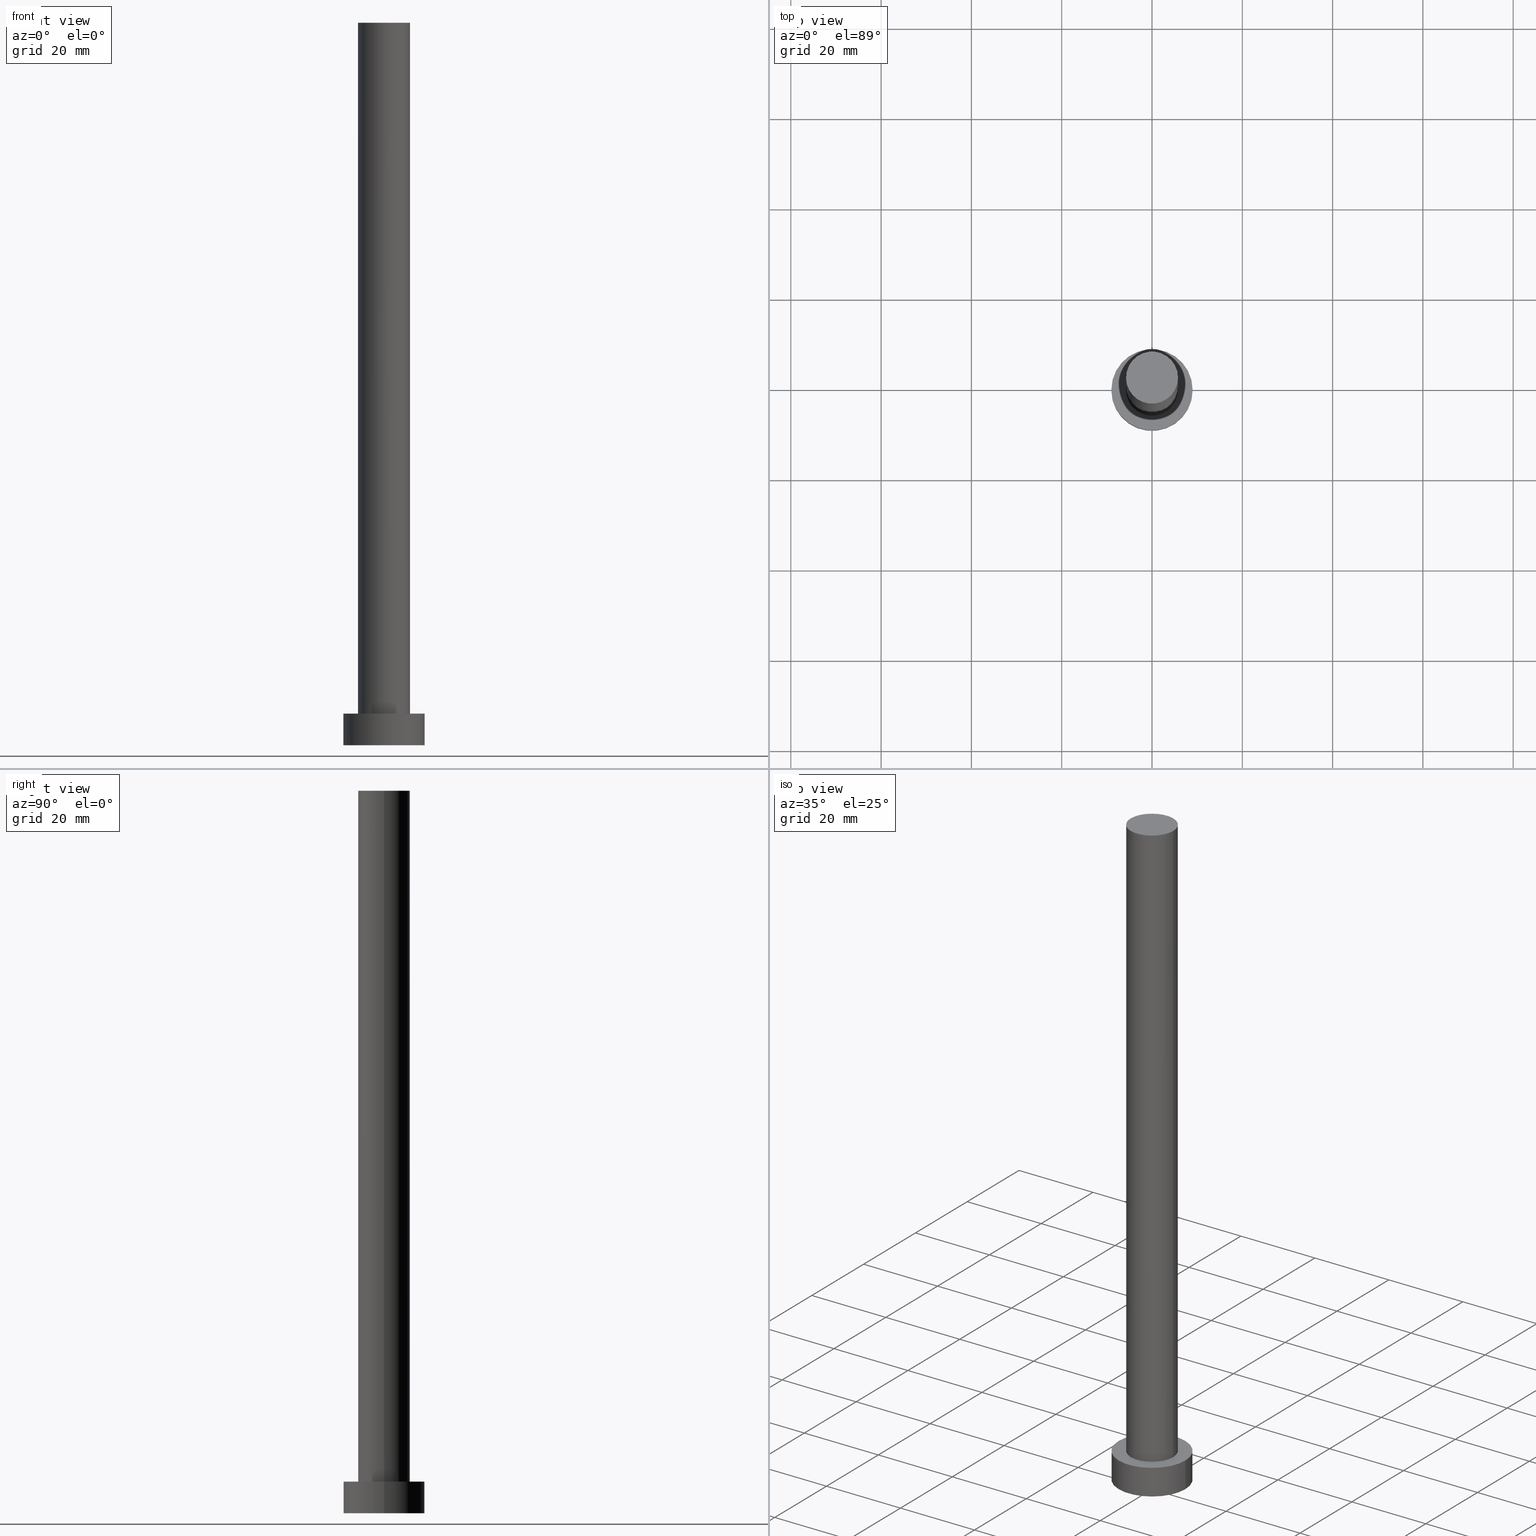
[diagram: canonical four-view strip — front | top / right | iso, engineering-drawing reading convention]
A machine part, canonical four-view strip (front | top / right | iso — engineering-drawing reading convention). The complete STEP part file that produces these views, byte-faithful:
ISO-10303-21;
HEADER;
FILE_DESCRIPTION (( 'STEP AP203' ),
    '1' );
FILE_NAME ('a5d1.STEP',
    '2023-02-13T12:27:35',
    ( '' ),
    ( '' ),
    'SwSTEP 2.0',
    'SolidWorks 2019',
    '' );
FILE_SCHEMA (( 'CONFIG_CONTROL_DESIGN' ));
ENDSEC;

DATA;
#1 = AXIS2_PLACEMENT_3D ( 'NONE', #76, #230, #186 ) ;
#2 = DIRECTION ( 'NONE',  ( 1.000000000000000000, 0.000000000000000000, 0.000000000000000000 ) ) ;
#3 = DIRECTION ( 'NONE',  ( 1.000000000000000000, 0.000000000000000000, 0.000000000000000000 ) ) ;
#4 = EDGE_LOOP ( 'NONE', ( #122, #171 ) ) ;
#5 = CC_DESIGN_DATE_AND_TIME_ASSIGNMENT ( #56, #144, ( #60 ) ) ;
#6 = EDGE_CURVE ( 'NONE', #67, #101, #168, .T. ) ;
#7 = DIRECTION ( 'NONE',  ( -0.000000000000000000, -0.000000000000000000, -1.000000000000000000 ) ) ;
#8 = ORIENTED_EDGE ( 'NONE', *, *, #187, .T. ) ;
#9 = DIRECTION ( 'NONE',  ( -1.000000000000000000, 0.000000000000000000, 0.000000000000000000 ) ) ;
#10 = EDGE_CURVE ( 'NONE', #107, #174, #178, .T. ) ;
#11 = ORIENTED_EDGE ( 'NONE', *, *, #6, .T. ) ;
#12 = ORIENTED_EDGE ( 'NONE', *, *, #189, .F. ) ;
#13 =( NAMED_UNIT ( * ) PLANE_ANGLE_UNIT ( ) SI_UNIT ( $, .RADIAN. ) );
#14 = AXIS2_PLACEMENT_3D ( 'NONE', #198, #54, #87 ) ;
#15 = PERSON_AND_ORGANIZATION ( #205, #224 ) ;
#16 = AXIS2_PLACEMENT_3D ( 'NONE', #113, #52, #151 ) ;
#17 = COORDINATED_UNIVERSAL_TIME_OFFSET ( 1, 0, .AHEAD. ) ;
#18 = DATE_AND_TIME ( #176, #118 ) ;
#19 = CYLINDRICAL_SURFACE ( 'NONE', #188, 9.000000000000000000 ) ;
#20 = APPROVAL_ROLE ( '' ) ;
#21 = DIRECTION ( 'NONE',  ( 0.000000000000000000, 0.000000000000000000, 1.000000000000000000 ) ) ;
#22 = DIRECTION ( 'NONE',  ( -1.000000000000000000, 0.000000000000000000, 0.000000000000000000 ) ) ;
#23 = PRODUCT_DEFINITION_FORMATION_WITH_SPECIFIED_SOURCE ( 'LIBOVOLN�', '', #142, .NOT_KNOWN. ) ;
#24 = APPLICATION_CONTEXT ( 'configuration controlled 3d designs of mechanical parts and assemblies' ) ;
#25 = FACE_OUTER_BOUND ( 'NONE', #242, .T. ) ;
#26 = EDGE_CURVE ( 'NONE', #112, #173, #100, .T. ) ;
#27 = APPROVAL_DATE_TIME ( #163, #219 ) ;
#28 = PERSON_AND_ORGANIZATION_ROLE ( 'creator' ) ;
#29 = CIRCLE ( 'NONE', #241, 5.750000000000000000 ) ;
#30 = APPLICATION_PROTOCOL_DEFINITION ( 'international standard', 'config_control_design', 1994, #24 ) ;
#31 = CARTESIAN_POINT ( 'NONE',  ( 5.750000000000000000, 7.041719095097280880E-16, 7.000000000000000000 ) ) ;
#32 = APPROVAL_STATUS ( 'not_yet_approved' ) ;
#33 = FACE_OUTER_BOUND ( 'NONE', #246, .T. ) ;
#34 = CARTESIAN_POINT ( 'NONE',  ( 0.000000000000000000, 0.000000000000000000, 160.0000000000000000 ) ) ;
#35 = CARTESIAN_POINT ( 'NONE',  ( -5.750000000000000000, 0.000000000000000000, 7.000000000000000000 ) ) ;
#36 = DIRECTION ( 'NONE',  ( 0.000000000000000000, 0.000000000000000000, 1.000000000000000000 ) ) ;
#37 = CARTESIAN_POINT ( 'NONE',  ( 5.750000000000000000, 7.041719095097280880E-16, 160.0000000000000000 ) ) ;
#38 = CARTESIAN_POINT ( 'NONE',  ( 0.000000000000000000, 0.000000000000000000, 7.000000000000000000 ) ) ;
#39 = AXIS2_PLACEMENT_3D ( 'NONE', #110, #48, #180 ) ;
#40 = DIRECTION ( 'NONE',  ( 1.000000000000000000, 0.000000000000000000, 0.000000000000000000 ) ) ;
#41 = DIRECTION ( 'NONE',  ( 1.000000000000000000, 0.000000000000000000, 0.000000000000000000 ) ) ;
#42 =( NAMED_UNIT ( * ) SI_UNIT ( $, .STERADIAN. ) SOLID_ANGLE_UNIT ( ) );
#43 = ORIENTED_EDGE ( 'NONE', *, *, #197, .F. ) ;
#44 = CIRCLE ( 'NONE', #169, 9.000000000000000000 ) ;
#45 = EDGE_CURVE ( 'NONE', #174, #107, #192, .T. ) ;
#46 = ORIENTED_EDGE ( 'NONE', *, *, #208, .F. ) ;
#47 = PERSON_AND_ORGANIZATION ( #205, #224 ) ;
#48 = DIRECTION ( 'NONE',  ( -0.000000000000000000, -0.000000000000000000, -1.000000000000000000 ) ) ;
#49 = CC_DESIGN_PERSON_AND_ORGANIZATION_ASSIGNMENT ( #15, #28, ( #153 ) ) ;
#50 =( GEOMETRIC_REPRESENTATION_CONTEXT ( 3 ) GLOBAL_UNCERTAINTY_ASSIGNED_CONTEXT ( ( #155 ) ) GLOBAL_UNIT_ASSIGNED_CONTEXT ( ( #240, #13, #42 ) ) REPRESENTATION_CONTEXT ( 'NONE', 'WORKASPACE' ) );
#51 = APPROVAL_DATE_TIME ( #18, #109 ) ;
#52 = DIRECTION ( 'NONE',  ( 0.000000000000000000, 0.000000000000000000, 1.000000000000000000 ) ) ;
#53 = DATE_AND_TIME ( #244, #158 ) ;
#54 = DIRECTION ( 'NONE',  ( 0.000000000000000000, 0.000000000000000000, 1.000000000000000000 ) ) ;
#55 = VECTOR ( 'NONE', #77, 1000.000000000000000 ) ;
#56 = DATE_AND_TIME ( #70, #194 ) ;
#57 = CARTESIAN_POINT ( 'NONE',  ( 9.000000000000000000, 1.102182119232617714E-15, 0.000000000000000000 ) ) ;
#58 = VECTOR ( 'NONE', #145, 1000.000000000000000 ) ;
#59 = FACE_OUTER_BOUND ( 'NONE', #105, .T. ) ;
#60 = SECURITY_CLASSIFICATION ( '', '', #162 ) ;
#61 = APPROVAL_PERSON_ORGANIZATION ( #207, #219, #20 ) ;
#62 = LINE ( 'NONE', #125, #94 ) ;
#63 = DIRECTION ( 'NONE',  ( -0.000000000000000000, -0.000000000000000000, -1.000000000000000000 ) ) ;
#64 = ADVANCED_FACE ( 'NONE', ( #59 ), #210, .T. ) ;
#65 = ADVANCED_BREP_SHAPE_REPRESENTATION ( 'a5d1', ( #209, #16 ), #50 ) ;
#66 = CARTESIAN_POINT ( 'NONE',  ( 0.000000000000000000, 0.000000000000000000, 0.000000000000000000 ) ) ;
#67 = VERTEX_POINT ( 'NONE', #57 ) ;
#68 = ORIENTED_EDGE ( 'NONE', *, *, #10, .F. ) ;
#69 = VECTOR ( 'NONE', #213, 1000.000000000000000 ) ;
#70 = CALENDAR_DATE ( 2023, 13, 2 ) ;
#71 = LINE ( 'NONE', #37, #58 ) ;
#72 = EDGE_LOOP ( 'NONE', ( #8, #146 ) ) ;
#73 = PERSON_AND_ORGANIZATION_ROLE ( 'classification_officer' ) ;
#74 = DATE_AND_TIME ( #126, #234 ) ;
#75 = CC_DESIGN_APPROVAL ( #201, ( #23 ) ) ;
#76 = CARTESIAN_POINT ( 'NONE',  ( 0.000000000000000000, 0.000000000000000000, 7.000000000000000000 ) ) ;
#77 = DIRECTION ( 'NONE',  ( -0.000000000000000000, -0.000000000000000000, -1.000000000000000000 ) ) ;
#78 = DIRECTION ( 'NONE',  ( -0.000000000000000000, -0.000000000000000000, -1.000000000000000000 ) ) ;
#79 = CYLINDRICAL_SURFACE ( 'NONE', #104, 5.750000000000000000 ) ;
#80 = FACE_BOUND ( 'NONE', #4, .T. ) ;
#81 = FACE_OUTER_BOUND ( 'NONE', #121, .T. ) ;
#82 = CARTESIAN_POINT ( 'NONE',  ( 0.000000000000000000, 0.000000000000000000, 160.0000000000000000 ) ) ;
#83 = ORIENTED_EDGE ( 'NONE', *, *, #136, .F. ) ;
#84 = APPROVAL_PERSON_ORGANIZATION ( #250, #201, #221 ) ;
#85 = FACE_OUTER_BOUND ( 'NONE', #103, .T. ) ;
#86 = APPROVAL_STATUS ( 'not_yet_approved' ) ;
#87 = DIRECTION ( 'NONE',  ( 1.000000000000000000, 0.000000000000000000, 0.000000000000000000 ) ) ;
#88 = APPLICATION_PROTOCOL_DEFINITION ( 'international standard', 'config_control_design', 1994, #157 ) ;
#89 = DIRECTION ( 'NONE',  ( 1.000000000000000000, 0.000000000000000000, -0.000000000000000000 ) ) ;
#90 = COORDINATED_UNIVERSAL_TIME_OFFSET ( 1, 0, .AHEAD. ) ;
#91 = PERSON_AND_ORGANIZATION ( #205, #224 ) ;
#92 = LINE ( 'NONE', #200, #69 ) ;
#93 = COORDINATED_UNIVERSAL_TIME_OFFSET ( 1, 0, .AHEAD. ) ;
#94 = VECTOR ( 'NONE', #78, 1000.000000000000000 ) ;
#95 = ADVANCED_FACE ( 'NONE', ( #203 ), #165, .T. ) ;
#96 = CARTESIAN_POINT ( 'NONE',  ( -5.750000000000000000, 0.000000000000000000, 160.0000000000000000 ) ) ;
#97 = CARTESIAN_POINT ( 'NONE',  ( 0.000000000000000000, 0.000000000000000000, 7.000000000000000000 ) ) ;
#98 = AXIS2_PLACEMENT_3D ( 'NONE', #156, #7, #9 ) ;
#99 = ORIENTED_EDGE ( 'NONE', *, *, #10, .T. ) ;
#100 = CIRCLE ( 'NONE', #220, 5.750000000000000000 ) ;
#101 = VERTEX_POINT ( 'NONE', #225 ) ;
#102 = ADVANCED_FACE ( 'NONE', ( #33 ), #19, .T. ) ;
#103 = EDGE_LOOP ( 'NONE', ( #46, #137 ) ) ;
#104 = AXIS2_PLACEMENT_3D ( 'NONE', #229, #133, #206 ) ;
#105 = EDGE_LOOP ( 'NONE', ( #123, #191, #218, #83 ) ) ;
#106 = COORDINATED_UNIVERSAL_TIME_OFFSET ( 1, 0, .AHEAD. ) ;
#107 = VERTEX_POINT ( 'NONE', #255 ) ;
#108 = DIRECTION ( 'NONE',  ( 1.000000000000000000, 0.000000000000000000, 0.000000000000000000 ) ) ;
#109 = APPROVAL ( #202, 'NEUR�EN�' ) ;
#110 = CARTESIAN_POINT ( 'NONE',  ( 0.000000000000000000, 0.000000000000000000, 160.0000000000000000 ) ) ;
#111 = PERSON_AND_ORGANIZATION ( #205, #224 ) ;
#112 = VERTEX_POINT ( 'NONE', #35 ) ;
#113 = CARTESIAN_POINT ( 'NONE',  ( 0.000000000000000000, 0.000000000000000000, 0.000000000000000000 ) ) ;
#114 = CC_DESIGN_PERSON_AND_ORGANIZATION_ASSIGNMENT ( #149, #73, ( #60 ) ) ;
#115 = FACE_OUTER_BOUND ( 'NONE', #140, .T. ) ;
#116 = DIRECTION ( 'NONE',  ( 1.000000000000000000, 0.000000000000000000, 0.000000000000000000 ) ) ;
#117 = DIRECTION ( 'NONE',  ( 0.000000000000000000, 0.000000000000000000, 1.000000000000000000 ) ) ;
#118 = LOCAL_TIME ( 13, 27, 35.00000000000000000, #106 ) ;
#119 = ORIENTED_EDGE ( 'NONE', *, *, #45, .F. ) ;
#120 = CLOSED_SHELL ( 'NONE', ( #64, #211, #102, #236, #177, #138, #95 ) ) ;
#121 = EDGE_LOOP ( 'NONE', ( #68, #172, #11, #217 ) ) ;
#122 = ORIENTED_EDGE ( 'NONE', *, *, #26, .F. ) ;
#123 = ORIENTED_EDGE ( 'NONE', *, *, #222, .F. ) ;
#124 = PERSON_AND_ORGANIZATION ( #205, #224 ) ;
#125 = CARTESIAN_POINT ( 'NONE',  ( -9.000000000000000000, 0.000000000000000000, 7.000000000000000000 ) ) ;
#126 = CALENDAR_DATE ( 2023, 13, 2 ) ;
#127 = PERSON_AND_ORGANIZATION_ROLE ( 'creator' ) ;
#128 = MECHANICAL_CONTEXT ( 'NONE', #157, 'mechanical' ) ;
#129 = PLANE ( 'NONE',  #164 ) ;
#130 = AXIS2_PLACEMENT_3D ( 'NONE', #82, #21, #2 ) ;
#131 = DIRECTION ( 'NONE',  ( 0.000000000000000000, 0.000000000000000000, 1.000000000000000000 ) ) ;
#132 = CC_DESIGN_PERSON_AND_ORGANIZATION_ASSIGNMENT ( #91, #127, ( #23 ) ) ;
#133 = DIRECTION ( 'NONE',  ( -0.000000000000000000, -0.000000000000000000, -1.000000000000000000 ) ) ;
#134 = AXIS2_PLACEMENT_3D ( 'NONE', #38, #117, #3 ) ;
#135 = VERTEX_POINT ( 'NONE', #96 ) ;
#136 = EDGE_CURVE ( 'NONE', #135, #112, #166, .T. ) ;
#137 = ORIENTED_EDGE ( 'NONE', *, *, #6, .F. ) ;
#138 = ADVANCED_FACE ( 'NONE', ( #115 ), #79, .T. ) ;
#139 = DIRECTION ( 'NONE',  ( 0.000000000000000000, 0.000000000000000000, 1.000000000000000000 ) ) ;
#140 = EDGE_LOOP ( 'NONE', ( #43, #159, #196, #141 ) ) ;
#141 = ORIENTED_EDGE ( 'NONE', *, *, #26, .T. ) ;
#142 = PRODUCT ( 'a5d1', 'a5d1', '', ( #128 ) ) ;
#143 = EDGE_CURVE ( 'NONE', #173, #112, #214, .T. ) ;
#144 = DATE_TIME_ROLE ( 'classification_date' ) ;
#145 = DIRECTION ( 'NONE',  ( -0.000000000000000000, -0.000000000000000000, -1.000000000000000000 ) ) ;
#146 = ORIENTED_EDGE ( 'NONE', *, *, #222, .T. ) ;
#147 = CARTESIAN_POINT ( 'NONE',  ( 0.000000000000000000, 0.000000000000000000, 160.0000000000000000 ) ) ;
#148 = COORDINATED_UNIVERSAL_TIME_OFFSET ( 1, 0, .AHEAD. ) ;
#149 = PERSON_AND_ORGANIZATION ( #205, #224 ) ;
#150 = CARTESIAN_POINT ( 'NONE',  ( -9.000000000000000000, 0.000000000000000000, 7.000000000000000000 ) ) ;
#151 = DIRECTION ( 'NONE',  ( 1.000000000000000000, 0.000000000000000000, 0.000000000000000000 ) ) ;
#152 = CC_DESIGN_APPROVAL ( #109, ( #60 ) ) ;
#153 = PRODUCT_DEFINITION ( 'NEZN�M�', '', #23, #232 ) ;
#154 = CYLINDRICAL_SURFACE ( 'NONE', #98, 9.000000000000000000 ) ;
#155 = UNCERTAINTY_MEASURE_WITH_UNIT (LENGTH_MEASURE( 1.000000000000000082E-05 ), #240, 'distance_accuracy_value', 'NONE');
#156 = CARTESIAN_POINT ( 'NONE',  ( 0.000000000000000000, 0.000000000000000000, 7.000000000000000000 ) ) ;
#157 = APPLICATION_CONTEXT ( 'configuration controlled 3d designs of mechanical parts and assemblies' ) ;
#158 = LOCAL_TIME ( 13, 27, 35.00000000000000000, #90 ) ;
#159 = ORIENTED_EDGE ( 'NONE', *, *, #187, .F. ) ;
#160 = CC_DESIGN_PERSON_AND_ORGANIZATION_ASSIGNMENT ( #124, #204, ( #142 ) ) ;
#161 = APPROVAL_DATE_TIME ( #74, #201 ) ;
#162 = SECURITY_CLASSIFICATION_LEVEL ( 'unclassified' ) ;
#163 = DATE_AND_TIME ( #226, #190 ) ;
#164 = AXIS2_PLACEMENT_3D ( 'NONE', #167, #139, #89 ) ;
#165 = PLANE ( 'NONE',  #238 ) ;
#166 = LINE ( 'NONE', #253, #55 ) ;
#167 = CARTESIAN_POINT ( 'NONE',  ( 0.000000000000000000, 0.000000000000000000, 0.000000000000000000 ) ) ;
#168 = CIRCLE ( 'NONE', #14, 9.000000000000000000 ) ;
#169 = AXIS2_PLACEMENT_3D ( 'NONE', #66, #216, #41 ) ;
#170 = PRODUCT_DEFINITION_SHAPE ( 'NONE', 'NONE',  #153 ) ;
#171 = ORIENTED_EDGE ( 'NONE', *, *, #143, .F. ) ;
#172 = ORIENTED_EDGE ( 'NONE', *, *, #189, .T. ) ;
#173 = VERTEX_POINT ( 'NONE', #31 ) ;
#174 = VERTEX_POINT ( 'NONE', #150 ) ;
#175 = APPROVAL_PERSON_ORGANIZATION ( #111, #109, #183 ) ;
#176 = CALENDAR_DATE ( 2023, 13, 2 ) ;
#177 = ADVANCED_FACE ( 'NONE', ( #85 ), #129, .F. ) ;
#178 = CIRCLE ( 'NONE', #1, 9.000000000000000000 ) ;
#179 = DATE_TIME_ROLE ( 'creation_date' ) ;
#180 = DIRECTION ( 'NONE',  ( -1.000000000000000000, 0.000000000000000000, 0.000000000000000000 ) ) ;
#181 = DIRECTION ( 'NONE',  ( 0.000000000000000000, 0.000000000000000000, 1.000000000000000000 ) ) ;
#182 = EDGE_CURVE ( 'NONE', #174, #101, #62, .T. ) ;
#183 = APPROVAL_ROLE ( '' ) ;
#184 = DIRECTION ( 'NONE',  ( 1.000000000000000000, 0.000000000000000000, -0.000000000000000000 ) ) ;
#185 = CC_DESIGN_PERSON_AND_ORGANIZATION_ASSIGNMENT ( #47, #247, ( #23 ) ) ;
#186 = DIRECTION ( 'NONE',  ( 1.000000000000000000, 0.000000000000000000, 0.000000000000000000 ) ) ;
#187 = EDGE_CURVE ( 'NONE', #135, #233, #29, .T. ) ;
#188 = AXIS2_PLACEMENT_3D ( 'NONE', #97, #63, #22 ) ;
#189 = EDGE_CURVE ( 'NONE', #107, #67, #92, .T. ) ;
#190 = LOCAL_TIME ( 13, 27, 35.00000000000000000, #93 ) ;
#191 = ORIENTED_EDGE ( 'NONE', *, *, #197, .T. ) ;
#192 = CIRCLE ( 'NONE', #251, 9.000000000000000000 ) ;
#193 = DIRECTION ( 'NONE',  ( 1.000000000000000000, 0.000000000000000000, -0.000000000000000000 ) ) ;
#194 = LOCAL_TIME ( 13, 27, 35.00000000000000000, #148 ) ;
#195 = CC_DESIGN_APPROVAL ( #219, ( #153 ) ) ;
#196 = ORIENTED_EDGE ( 'NONE', *, *, #136, .T. ) ;
#197 = EDGE_CURVE ( 'NONE', #233, #173, #71, .T. ) ;
#198 = CARTESIAN_POINT ( 'NONE',  ( 0.000000000000000000, 0.000000000000000000, 0.000000000000000000 ) ) ;
#199 = PLANE ( 'NONE',  #254 ) ;
#200 = CARTESIAN_POINT ( 'NONE',  ( 9.000000000000000000, 1.102182119232617714E-15, 7.000000000000000000 ) ) ;
#201 = APPROVAL ( #86, 'NEUR�EN�' ) ;
#202 = APPROVAL_STATUS ( 'not_yet_approved' ) ;
#203 = FACE_OUTER_BOUND ( 'NONE', #72, .T. ) ;
#204 = PERSON_AND_ORGANIZATION_ROLE ( 'design_owner' ) ;
#205 = PERSON ( 'NEUR�EN�', 'NEUR�EN�', 'NEUR�EN�', ('NEUR�EN�'), ('NEUR�EN�'), ('NEUR�EN�') ) ;
#206 = DIRECTION ( 'NONE',  ( -1.000000000000000000, 0.000000000000000000, 0.000000000000000000 ) ) ;
#207 = PERSON_AND_ORGANIZATION ( #205, #224 ) ;
#208 = EDGE_CURVE ( 'NONE', #101, #67, #44, .T. ) ;
#209 = MANIFOLD_SOLID_BREP ( 'P�idat vysunut�m3', #120 ) ;
#210 = CYLINDRICAL_SURFACE ( 'NONE', #39, 5.750000000000000000 ) ;
#211 = ADVANCED_FACE ( 'NONE', ( #81 ), #154, .T. ) ;
#212 = CARTESIAN_POINT ( 'NONE',  ( 0.000000000000000000, 0.000000000000000000, 7.000000000000000000 ) ) ;
#213 = DIRECTION ( 'NONE',  ( -0.000000000000000000, -0.000000000000000000, -1.000000000000000000 ) ) ;
#214 = CIRCLE ( 'NONE', #134, 5.750000000000000000 ) ;
#215 = CC_DESIGN_SECURITY_CLASSIFICATION ( #60, ( #23 ) ) ;
#216 = DIRECTION ( 'NONE',  ( 0.000000000000000000, 0.000000000000000000, 1.000000000000000000 ) ) ;
#217 = ORIENTED_EDGE ( 'NONE', *, *, #182, .F. ) ;
#218 = ORIENTED_EDGE ( 'NONE', *, *, #143, .T. ) ;
#219 = APPROVAL ( #32, 'NEUR�EN�' ) ;
#220 = AXIS2_PLACEMENT_3D ( 'NONE', #228, #131, #40 ) ;
#221 = APPROVAL_ROLE ( '' ) ;
#222 = EDGE_CURVE ( 'NONE', #233, #135, #245, .T. ) ;
#223 = SHAPE_DEFINITION_REPRESENTATION ( #170, #65 ) ;
#224 = ORGANIZATION ( 'NEUR�EN�', 'NEUR�EN�', '' ) ;
#225 = CARTESIAN_POINT ( 'NONE',  ( -9.000000000000000000, 0.000000000000000000, 0.000000000000000000 ) ) ;
#226 = CALENDAR_DATE ( 2023, 13, 2 ) ;
#227 = DIRECTION ( 'NONE',  ( 0.000000000000000000, 0.000000000000000000, 1.000000000000000000 ) ) ;
#228 = CARTESIAN_POINT ( 'NONE',  ( 0.000000000000000000, 0.000000000000000000, 7.000000000000000000 ) ) ;
#229 = CARTESIAN_POINT ( 'NONE',  ( 0.000000000000000000, 0.000000000000000000, 160.0000000000000000 ) ) ;
#230 = DIRECTION ( 'NONE',  ( 0.000000000000000000, 0.000000000000000000, 1.000000000000000000 ) ) ;
#231 = CARTESIAN_POINT ( 'NONE',  ( 5.750000000000000000, 7.041719095097280880E-16, 160.0000000000000000 ) ) ;
#232 = DESIGN_CONTEXT ( 'detailed design', #24, 'design' ) ;
#233 = VERTEX_POINT ( 'NONE', #231 ) ;
#234 = LOCAL_TIME ( 13, 27, 35.00000000000000000, #17 ) ;
#235 = CC_DESIGN_DATE_AND_TIME_ASSIGNMENT ( #53, #179, ( #153 ) ) ;
#236 = ADVANCED_FACE ( 'NONE', ( #80, #25 ), #199, .T. ) ;
#237 = ORIENTED_EDGE ( 'NONE', *, *, #208, .T. ) ;
#238 = AXIS2_PLACEMENT_3D ( 'NONE', #34, #227, #184 ) ;
#239 = ORIENTED_EDGE ( 'NONE', *, *, #182, .T. ) ;
#240 =( LENGTH_UNIT ( ) NAMED_UNIT ( * ) SI_UNIT ( .MILLI., .METRE. ) );
#241 = AXIS2_PLACEMENT_3D ( 'NONE', #147, #181, #108 ) ;
#242 = EDGE_LOOP ( 'NONE', ( #248, #99 ) ) ;
#243 = PRODUCT_RELATED_PRODUCT_CATEGORY ( 'detail', '', ( #142 ) ) ;
#244 = CALENDAR_DATE ( 2023, 13, 2 ) ;
#245 = CIRCLE ( 'NONE', #130, 5.750000000000000000 ) ;
#246 = EDGE_LOOP ( 'NONE', ( #12, #119, #239, #237 ) ) ;
#247 = PERSON_AND_ORGANIZATION_ROLE ( 'design_supplier' ) ;
#248 = ORIENTED_EDGE ( 'NONE', *, *, #45, .T. ) ;
#249 = CARTESIAN_POINT ( 'NONE',  ( 0.000000000000000000, 0.000000000000000000, 7.000000000000000000 ) ) ;
#250 = PERSON_AND_ORGANIZATION ( #205, #224 ) ;
#251 = AXIS2_PLACEMENT_3D ( 'NONE', #212, #36, #116 ) ;
#252 = DIRECTION ( 'NONE',  ( 0.000000000000000000, 0.000000000000000000, 1.000000000000000000 ) ) ;
#253 = CARTESIAN_POINT ( 'NONE',  ( -5.750000000000000000, 0.000000000000000000, 160.0000000000000000 ) ) ;
#254 = AXIS2_PLACEMENT_3D ( 'NONE', #249, #252, #193 ) ;
#255 = CARTESIAN_POINT ( 'NONE',  ( 9.000000000000000000, 1.102182119232617714E-15, 7.000000000000000000 ) ) ;
ENDSEC;
END-ISO-10303-21;
